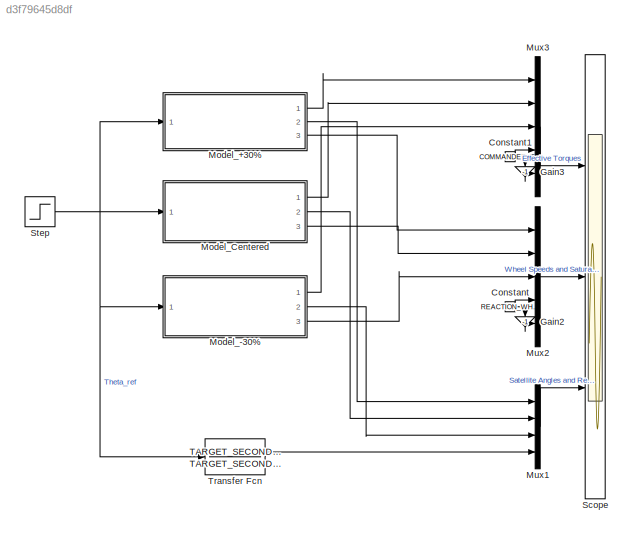
MODEL slx_d3f79645d8df
KIND model
CONFIG AbsTol = auto
CONFIG EnableMultiTasking = off
CONFIG FixedStep = auto
CONFIG MaxStep = auto
CONFIG MinStep = auto
CONFIG RelTol = 1e-3
CONFIG SampleTimeConstraint = Unconstrained
CONFIG SolverName = VariableStepAuto
CONFIG StartTime = 0.0
CONFIG StopTime = 200
BLOCK [Constant] Constant
  Value = REACTION_WHEEL_VELOCITY_SATURATION
BLOCK [Constant] Constant1
  Value = COMMANDED_TORQUE_SATURATION
BLOCK [Gain] Gain2
  Gain = -1
  NameLocation = left
BLOCK [Gain] Gain3
  Gain = -1
  NameLocation = left
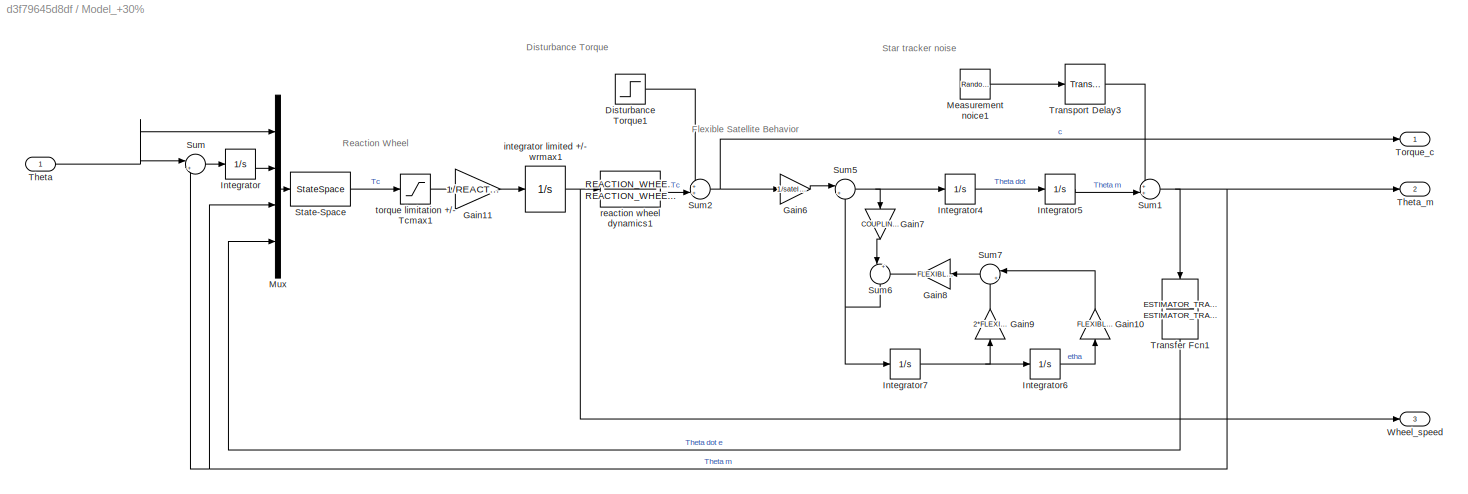
BLOCK [SubSystem] Model_+30%
  Ports = [1, 3]
  RequestExecContextInheritance = off
BLOCK [Step] Model_+30%/Disturbance Torque1
  After = DISTURBANCE_TORQUE
  SampleTime = 0
  Time = DISTURBANCE_TORQUE_DELAY
BLOCK [Gain] Model_+30%/Gain10
  Gain = FLEXIBLE_MODE_FREQUENCY
  NameLocation = right
BLOCK [Gain] Model_+30%/Gain11
  Gain = 1/REACTION_WHEEL_INERTIA
BLOCK [Gain] Model_+30%/Gain6
  Gain = 1/satelliteInertiaMaxWorstCase
BLOCK [Gain] Model_+30%/Gain7
  Gain = COUPLING_COEFFICIENT
  NameLocation = left
BLOCK [Gain] Model_+30%/Gain8
  Gain = FLEXIBLE_MODE_FREQUENCY
  NameLocation = top
BLOCK [Gain] Model_+30%/Gain9
  Gain = 2*FLEXIBLE_MODE_DAMPING_RATIO
  NameLocation = right
BLOCK [Integrator] Model_+30%/Integrator
  Ports = [1, 1]
BLOCK [Integrator] Model_+30%/Integrator4
  Ports = [1, 1]
BLOCK [Integrator] Model_+30%/Integrator5
  Ports = [1, 1]
BLOCK [Integrator] Model_+30%/Integrator6
  InitialCondition = INITIAL_CONDITION_ON_STATE
  Ports = [1, 1]
BLOCK [Integrator] Model_+30%/Integrator7
  Ports = [1, 1]
BLOCK [RandomNumber] Model_+30%/Measurement noice1
  SampleTime = 0.01
  Variance = MEASUREMENT_NOISE_VARIANCE
BLOCK [Mux] Model_+30%/Mux
  DisplayOption = bar
  Ports = [4, 1]
BLOCK [StateSpace] Model_+30%/State-Space
  A = hinfControlWithIntegratorMultimodelStateSpace.A
  B = hinfControlWithIntegratorMultimodelStateSpace.B
  C = hinfControlWithIntegratorMultimodelStateSpace.C
  D = hinfControlWithIntegratorMultimodelStateSpace.D
  InitialCondition = 0
  Ports = [1, 1]
BLOCK [Sum] Model_+30%/Sum
  Inputs = |+-
  Ports = [2, 1]
BLOCK [Sum] Model_+30%/Sum1
  Inputs = ++|
  Ports = [2, 1]
BLOCK [Sum] Model_+30%/Sum2
  Inputs = ++|
  Ports = [2, 1]
BLOCK [Sum] Model_+30%/Sum5
  Inputs = |++
  Ports = [2, 1]
BLOCK [Sum] Model_+30%/Sum6
  Inputs = |+-
  NameLocation = left
  Ports = [2, 1]
BLOCK [Sum] Model_+30%/Sum7
  Inputs = |++
  NameLocation = top
  Ports = [2, 1]
BLOCK [Inport] Model_+30%/Theta
  NameLocation = top
BLOCK [Outport] Model_+30%/Theta_m
  Port = 2
BLOCK [Outport] Model_+30%/Torque_c
BLOCK [TransferFcn] Model_+30%/Transfer Fcn1
  Denominator = ESTIMATOR_TRANSFER_FUNCTION_DENOMINATOR
  NameLocation = left
  Numerator = ESTIMATOR_TRANSFER_FUNCTION_NUMERATOR
BLOCK [TransportDelay] Model_+30%/Transport Delay3
  DelayTime = STAR_TRACKER_NOISE_DELAY
  Ports = [1, 1]
BLOCK [Outport] Model_+30%/Wheel_speed
  Port = 3
BLOCK [Integrator] Model_+30%/integrator limited +//- wrmax1
  LimitOutput = on
  LowerSaturationLimit = -REACTION_WHEEL_VELOCITY_SATURATION
  Ports = [1, 1]
  UpperSaturationLimit = REACTION_WHEEL_VELOCITY_SATURATION
BLOCK [TransferFcn] Model_+30%/reaction wheel dynamics1
  Denominator = REACTION_WHEEL_DYNAMICS_DENOMINATOR
  Numerator = REACTION_WHEEL_DYNAMICS_NUMERATOR
BLOCK [Saturate] Model_+30%/torque limitation +//- Tcmax1
  LowerLimit = -COMMANDED_TORQUE_SATURATION
  UpperLimit = COMMANDED_TORQUE_SATURATION
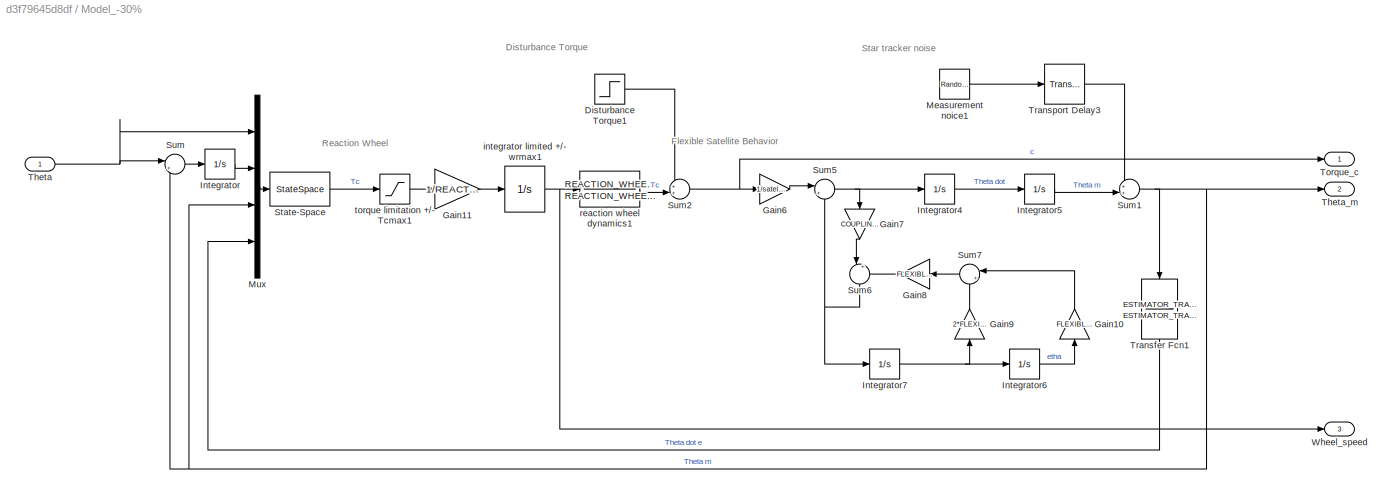
BLOCK [SubSystem] Model_-30%
  Ports = [1, 3]
  RequestExecContextInheritance = off
BLOCK [Step] Model_-30%/Disturbance Torque1
  After = DISTURBANCE_TORQUE
  SampleTime = 0
  Time = DISTURBANCE_TORQUE_DELAY
BLOCK [Gain] Model_-30%/Gain10
  Gain = FLEXIBLE_MODE_FREQUENCY
  NameLocation = right
BLOCK [Gain] Model_-30%/Gain11
  Gain = 1/REACTION_WHEEL_INERTIA
BLOCK [Gain] Model_-30%/Gain6
  Gain = 1/satelliteInertiaMinWorstCase
BLOCK [Gain] Model_-30%/Gain7
  Gain = COUPLING_COEFFICIENT
  NameLocation = left
BLOCK [Gain] Model_-30%/Gain8
  Gain = FLEXIBLE_MODE_FREQUENCY
  NameLocation = top
BLOCK [Gain] Model_-30%/Gain9
  Gain = 2*FLEXIBLE_MODE_DAMPING_RATIO
  NameLocation = right
BLOCK [Integrator] Model_-30%/Integrator
  Ports = [1, 1]
BLOCK [Integrator] Model_-30%/Integrator4
  Ports = [1, 1]
BLOCK [Integrator] Model_-30%/Integrator5
  Ports = [1, 1]
BLOCK [Integrator] Model_-30%/Integrator6
  InitialCondition = INITIAL_CONDITION_ON_STATE
  Ports = [1, 1]
BLOCK [Integrator] Model_-30%/Integrator7
  Ports = [1, 1]
BLOCK [RandomNumber] Model_-30%/Measurement noice1
  SampleTime = 0.01
  Variance = MEASUREMENT_NOISE_VARIANCE
BLOCK [Mux] Model_-30%/Mux
  DisplayOption = bar
  Ports = [4, 1]
BLOCK [StateSpace] Model_-30%/State-Space
  A = hinfControlWithIntegratorMultimodelStateSpace.A
  B = hinfControlWithIntegratorMultimodelStateSpace.B
  C = hinfControlWithIntegratorMultimodelStateSpace.C
  D = hinfControlWithIntegratorMultimodelStateSpace.D
  InitialCondition = 0
  Ports = [1, 1]
BLOCK [Sum] Model_-30%/Sum
  Inputs = |+-
  Ports = [2, 1]
BLOCK [Sum] Model_-30%/Sum1
  Inputs = ++|
  Ports = [2, 1]
BLOCK [Sum] Model_-30%/Sum2
  Inputs = ++|
  Ports = [2, 1]
BLOCK [Sum] Model_-30%/Sum5
  Inputs = |++
  Ports = [2, 1]
BLOCK [Sum] Model_-30%/Sum6
  Inputs = |+-
  NameLocation = left
  Ports = [2, 1]
BLOCK [Sum] Model_-30%/Sum7
  Inputs = |++
  NameLocation = top
  Ports = [2, 1]
BLOCK [Inport] Model_-30%/Theta
BLOCK [Outport] Model_-30%/Theta_m
  Port = 2
BLOCK [Outport] Model_-30%/Torque_c
BLOCK [TransferFcn] Model_-30%/Transfer Fcn1
  Denominator = ESTIMATOR_TRANSFER_FUNCTION_DENOMINATOR
  NameLocation = left
  Numerator = ESTIMATOR_TRANSFER_FUNCTION_NUMERATOR
BLOCK [TransportDelay] Model_-30%/Transport Delay3
  DelayTime = STAR_TRACKER_NOISE_DELAY
  Ports = [1, 1]
BLOCK [Outport] Model_-30%/Wheel_speed
  Port = 3
BLOCK [Integrator] Model_-30%/integrator limited +//- wrmax1
  LimitOutput = on
  LowerSaturationLimit = -REACTION_WHEEL_VELOCITY_SATURATION
  Ports = [1, 1]
  UpperSaturationLimit = REACTION_WHEEL_VELOCITY_SATURATION
BLOCK [TransferFcn] Model_-30%/reaction wheel dynamics1
  Denominator = REACTION_WHEEL_DYNAMICS_DENOMINATOR
  Numerator = REACTION_WHEEL_DYNAMICS_NUMERATOR
BLOCK [Saturate] Model_-30%/torque limitation +//- Tcmax1
  LowerLimit = -COMMANDED_TORQUE_SATURATION
  UpperLimit = COMMANDED_TORQUE_SATURATION
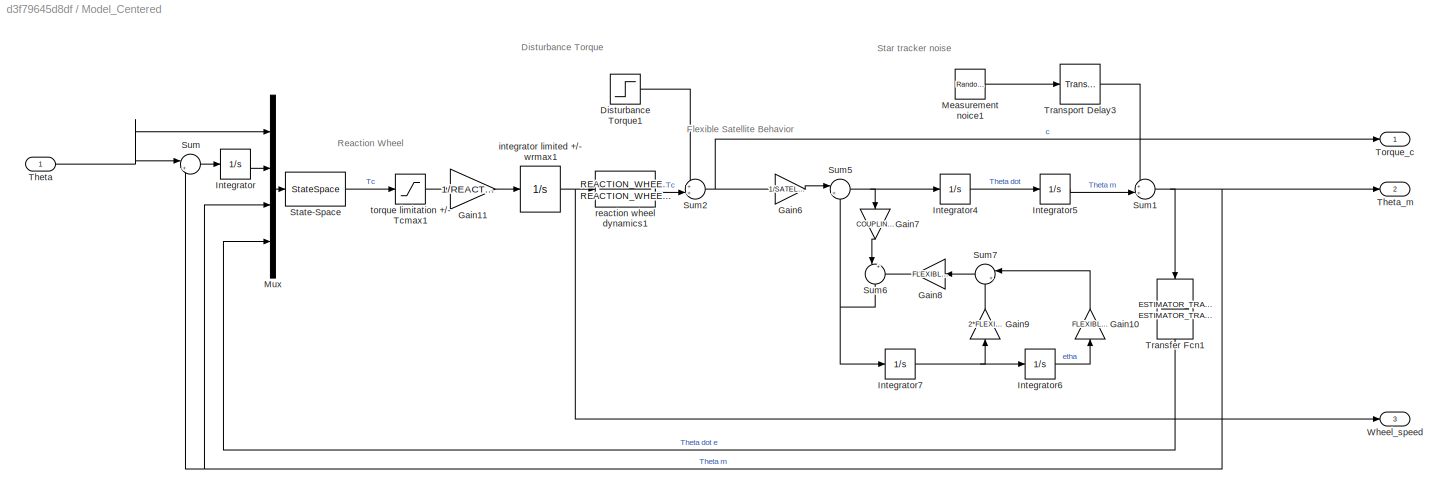
BLOCK [SubSystem] Model_Centered
  Ports = [1, 3]
  RequestExecContextInheritance = off
BLOCK [Step] Model_Centered/Disturbance Torque1
  After = DISTURBANCE_TORQUE
  SampleTime = 0
  Time = DISTURBANCE_TORQUE_DELAY
BLOCK [Gain] Model_Centered/Gain10
  Gain = FLEXIBLE_MODE_FREQUENCY
  NameLocation = right
BLOCK [Gain] Model_Centered/Gain11
  Gain = 1/REACTION_WHEEL_INERTIA
BLOCK [Gain] Model_Centered/Gain6
  Gain = 1/SATELLITE_INERTIA
BLOCK [Gain] Model_Centered/Gain7
  Gain = COUPLING_COEFFICIENT
  NameLocation = left
BLOCK [Gain] Model_Centered/Gain8
  Gain = FLEXIBLE_MODE_FREQUENCY
  NameLocation = top
BLOCK [Gain] Model_Centered/Gain9
  Gain = 2*FLEXIBLE_MODE_DAMPING_RATIO
  NameLocation = right
BLOCK [Integrator] Model_Centered/Integrator
  Ports = [1, 1]
BLOCK [Integrator] Model_Centered/Integrator4
  Ports = [1, 1]
BLOCK [Integrator] Model_Centered/Integrator5
  Ports = [1, 1]
BLOCK [Integrator] Model_Centered/Integrator6
  InitialCondition = INITIAL_CONDITION_ON_STATE
  Ports = [1, 1]
BLOCK [Integrator] Model_Centered/Integrator7
  Ports = [1, 1]
BLOCK [RandomNumber] Model_Centered/Measurement noice1
  SampleTime = 0.01
  Variance = MEASUREMENT_NOISE_VARIANCE
BLOCK [Mux] Model_Centered/Mux
  DisplayOption = bar
  Ports = [4, 1]
BLOCK [StateSpace] Model_Centered/State-Space
  A = hinfControlWithIntegratorMultimodelStateSpace.A
  B = hinfControlWithIntegratorMultimodelStateSpace.B
  C = hinfControlWithIntegratorMultimodelStateSpace.C
  D = hinfControlWithIntegratorMultimodelStateSpace.D
  InitialCondition = 0
  Ports = [1, 1]
BLOCK [Sum] Model_Centered/Sum
  Inputs = |+-
  Ports = [2, 1]
BLOCK [Sum] Model_Centered/Sum1
  Inputs = ++|
  Ports = [2, 1]
BLOCK [Sum] Model_Centered/Sum2
  Inputs = ++|
  Ports = [2, 1]
BLOCK [Sum] Model_Centered/Sum5
  Inputs = |++
  Ports = [2, 1]
BLOCK [Sum] Model_Centered/Sum6
  Inputs = |+-
  NameLocation = left
  Ports = [2, 1]
BLOCK [Sum] Model_Centered/Sum7
  Inputs = |++
  NameLocation = top
  Ports = [2, 1]
BLOCK [Inport] Model_Centered/Theta
  NameLocation = top
BLOCK [Outport] Model_Centered/Theta_m
  Port = 2
BLOCK [Outport] Model_Centered/Torque_c
BLOCK [TransferFcn] Model_Centered/Transfer Fcn1
  Denominator = ESTIMATOR_TRANSFER_FUNCTION_DENOMINATOR
  NameLocation = left
  Numerator = ESTIMATOR_TRANSFER_FUNCTION_NUMERATOR
BLOCK [TransportDelay] Model_Centered/Transport Delay3
  DelayTime = STAR_TRACKER_NOISE_DELAY
  Ports = [1, 1]
BLOCK [Outport] Model_Centered/Wheel_speed
  Port = 3
BLOCK [Integrator] Model_Centered/integrator limited +//- wrmax1
  LimitOutput = on
  LowerSaturationLimit = -REACTION_WHEEL_VELOCITY_SATURATION
  Ports = [1, 1]
  UpperSaturationLimit = REACTION_WHEEL_VELOCITY_SATURATION
BLOCK [TransferFcn] Model_Centered/reaction wheel dynamics1
  Denominator = REACTION_WHEEL_DYNAMICS_DENOMINATOR
  Numerator = REACTION_WHEEL_DYNAMICS_NUMERATOR
BLOCK [Saturate] Model_Centered/torque limitation +//- Tcmax1
  LowerLimit = -COMMANDED_TORQUE_SATURATION
  UpperLimit = COMMANDED_TORQUE_SATURATION
BLOCK [Mux] Mux1
  DisplayOption = bar
  Ports = [4, 1]
BLOCK [Mux] Mux2
  DisplayOption = bar
  Inputs = 5
  Ports = [5, 1]
BLOCK [Mux] Mux3
  DisplayOption = bar
  Inputs = 5
  Ports = [5, 1]
BLOCK [Scope] Scope
  Floating = off
  NumInputPorts = 3
  Ports = [3]
  ScopeSpecificationString = Simulink.scopes.TimeScopeBlockCfg('CurrentConfiguration', extmgr.ConfigurationSet(extmgr.Configuration('Core','General UI',true),extmgr.Configuration('Core','Source UI',true),extmgr.Configuration('Sources','WiredSimulink',true),extmgr.Configuration('Visuals','Time Domain',true,'SerializedDisplays',{struct('MinYLimReal','-0.0625','MaxYLimReal','0.0625','YLabelReal','','MinYLimMag','0.00000','MaxYLi...<+3188ch>
BLOCK [Step] Step
  After = MAXIMUM_TOLERABLE_POINTING_ERROR
  SampleTime = 0
  Time = 0
BLOCK [TransferFcn] Transfer Fcn
  Denominator = TARGET_SECOND_ORDER.TRANSFER_FUNCTION.Denominator{1}
  Numerator = TARGET_SECOND_ORDER.TRANSFER_FUNCTION.Numerator{1}
ANNOTATION Model_+30%: Disturbance Torque
ANNOTATION Model_+30%: Flexible Satellite Behavior
ANNOTATION Model_+30%: Reaction Wheel
ANNOTATION Model_+30%: Star tracker noise
ANNOTATION Model_-30%: Disturbance Torque
ANNOTATION Model_-30%: Flexible Satellite Behavior
ANNOTATION Model_-30%: Reaction Wheel
ANNOTATION Model_-30%: Star tracker noise
ANNOTATION Model_Centered: Disturbance Torque
ANNOTATION Model_Centered: Flexible Satellite Behavior
ANNOTATION Model_Centered: Reaction Wheel
ANNOTATION Model_Centered: Star tracker noise
NET Constant1:1 -> Gain3:1, Mux3:4
NET Constant:1 -> Gain2:1, Mux2:4
LINE Gain2:1 -> Mux2:5
LINE Gain3:1 -> Mux3:5
LINE Model_+30%/Disturbance Torque1:1 -> Model_+30%/Sum2:1
LINE Model_+30%/Gain10:1 -> Model_+30%/Sum7:1
LINE Model_+30%/Gain11:1 -> Model_+30%/integrator limited +//- wrmax1:1
LINE Model_+30%/Gain6:1 -> Model_+30%/Sum5:1
LINE Model_+30%/Gain7:1 -> Model_+30%/Sum6:1
LINE Model_+30%/Gain8:1 -> Model_+30%/Sum6:2
LINE Model_+30%/Gain9:1 -> Model_+30%/Sum7:2
LINE Model_+30%/Integrator4:1 -> Model_+30%/Integrator5:1
LINE Model_+30%/Integrator5:1 -> Model_+30%/Sum1:2
LINE Model_+30%/Integrator6:1 -> Model_+30%/Gain10:1
NET Model_+30%/Integrator7:1 -> Model_+30%/Gain9:1, Model_+30%/Integrator6:1
LINE Model_+30%/Integrator:1 -> Model_+30%/Mux:2
LINE Model_+30%/Measurement noice1:1 -> Model_+30%/Transport Delay3:1
LINE Model_+30%/Mux:1 -> Model_+30%/State-Space:1
LINE Model_+30%/State-Space:1 -> Model_+30%/torque limitation +//- Tcmax1:1
NET Model_+30%/Sum1:1 -> Model_+30%/Mux:3, Model_+30%/Sum:2, Model_+30%/Theta_m:1, Model_+30%/Transfer Fcn1:1
NET Model_+30%/Sum2:1 -> Model_+30%/Gain6:1, Model_+30%/Torque_c:1
NET Model_+30%/Sum5:1 -> Model_+30%/Gain7:1, Model_+30%/Integrator4:1
NET Model_+30%/Sum6:1 -> Model_+30%/Integrator7:1, Model_+30%/Sum5:2
LINE Model_+30%/Sum7:1 -> Model_+30%/Gain8:1
LINE Model_+30%/Sum:1 -> Model_+30%/Integrator:1
NET Model_+30%/Theta:1 -> Model_+30%/Mux:1, Model_+30%/Sum:1
LINE Model_+30%/Transfer Fcn1:1 -> Model_+30%/Mux:4
LINE Model_+30%/Transport Delay3:1 -> Model_+30%/Sum1:1
NET Model_+30%/integrator limited +//- wrmax1:1 -> Model_+30%/Wheel_speed:1, Model_+30%/reaction wheel dynamics1:1
LINE Model_+30%/reaction wheel dynamics1:1 -> Model_+30%/Sum2:2
LINE Model_+30%/torque limitation +//- Tcmax1:1 -> Model_+30%/Gain11:1
LINE Model_+30%:1 -> Mux3:1
LINE Model_+30%:2 -> Mux1:1
LINE Model_+30%:3 -> Mux2:1
LINE Model_-30%/Disturbance Torque1:1 -> Model_-30%/Sum2:1
LINE Model_-30%/Gain10:1 -> Model_-30%/Sum7:1
LINE Model_-30%/Gain11:1 -> Model_-30%/integrator limited +//- wrmax1:1
LINE Model_-30%/Gain6:1 -> Model_-30%/Sum5:1
LINE Model_-30%/Gain7:1 -> Model_-30%/Sum6:1
LINE Model_-30%/Gain8:1 -> Model_-30%/Sum6:2
LINE Model_-30%/Gain9:1 -> Model_-30%/Sum7:2
LINE Model_-30%/Integrator4:1 -> Model_-30%/Integrator5:1
LINE Model_-30%/Integrator5:1 -> Model_-30%/Sum1:2
LINE Model_-30%/Integrator6:1 -> Model_-30%/Gain10:1
NET Model_-30%/Integrator7:1 -> Model_-30%/Gain9:1, Model_-30%/Integrator6:1
LINE Model_-30%/Integrator:1 -> Model_-30%/Mux:2
LINE Model_-30%/Measurement noice1:1 -> Model_-30%/Transport Delay3:1
LINE Model_-30%/Mux:1 -> Model_-30%/State-Space:1
LINE Model_-30%/State-Space:1 -> Model_-30%/torque limitation +//- Tcmax1:1
NET Model_-30%/Sum1:1 -> Model_-30%/Mux:3, Model_-30%/Sum:2, Model_-30%/Theta_m:1, Model_-30%/Transfer Fcn1:1
NET Model_-30%/Sum2:1 -> Model_-30%/Gain6:1, Model_-30%/Torque_c:1
NET Model_-30%/Sum5:1 -> Model_-30%/Gain7:1, Model_-30%/Integrator4:1
NET Model_-30%/Sum6:1 -> Model_-30%/Integrator7:1, Model_-30%/Sum5:2
LINE Model_-30%/Sum7:1 -> Model_-30%/Gain8:1
LINE Model_-30%/Sum:1 -> Model_-30%/Integrator:1
NET Model_-30%/Theta:1 -> Model_-30%/Mux:1, Model_-30%/Sum:1
LINE Model_-30%/Transfer Fcn1:1 -> Model_-30%/Mux:4
LINE Model_-30%/Transport Delay3:1 -> Model_-30%/Sum1:1
NET Model_-30%/integrator limited +//- wrmax1:1 -> Model_-30%/Wheel_speed:1, Model_-30%/reaction wheel dynamics1:1
LINE Model_-30%/reaction wheel dynamics1:1 -> Model_-30%/Sum2:2
LINE Model_-30%/torque limitation +//- Tcmax1:1 -> Model_-30%/Gain11:1
LINE Model_-30%:1 -> Mux3:3
LINE Model_-30%:2 -> Mux1:3
LINE Model_-30%:3 -> Mux2:3
LINE Model_Centered/Disturbance Torque1:1 -> Model_Centered/Sum2:1
LINE Model_Centered/Gain10:1 -> Model_Centered/Sum7:1
LINE Model_Centered/Gain11:1 -> Model_Centered/integrator limited +//- wrmax1:1
LINE Model_Centered/Gain6:1 -> Model_Centered/Sum5:1
LINE Model_Centered/Gain7:1 -> Model_Centered/Sum6:1
LINE Model_Centered/Gain8:1 -> Model_Centered/Sum6:2
LINE Model_Centered/Gain9:1 -> Model_Centered/Sum7:2
LINE Model_Centered/Integrator4:1 -> Model_Centered/Integrator5:1
LINE Model_Centered/Integrator5:1 -> Model_Centered/Sum1:2
LINE Model_Centered/Integrator6:1 -> Model_Centered/Gain10:1
NET Model_Centered/Integrator7:1 -> Model_Centered/Gain9:1, Model_Centered/Integrator6:1
LINE Model_Centered/Integrator:1 -> Model_Centered/Mux:2
LINE Model_Centered/Measurement noice1:1 -> Model_Centered/Transport Delay3:1
LINE Model_Centered/Mux:1 -> Model_Centered/State-Space:1
LINE Model_Centered/State-Space:1 -> Model_Centered/torque limitation +//- Tcmax1:1
NET Model_Centered/Sum1:1 -> Model_Centered/Mux:3, Model_Centered/Sum:2, Model_Centered/Theta_m:1, Model_Centered/Transfer Fcn1:1
NET Model_Centered/Sum2:1 -> Model_Centered/Gain6:1, Model_Centered/Torque_c:1
NET Model_Centered/Sum5:1 -> Model_Centered/Gain7:1, Model_Centered/Integrator4:1
NET Model_Centered/Sum6:1 -> Model_Centered/Integrator7:1, Model_Centered/Sum5:2
LINE Model_Centered/Sum7:1 -> Model_Centered/Gain8:1
LINE Model_Centered/Sum:1 -> Model_Centered/Integrator:1
NET Model_Centered/Theta:1 -> Model_Centered/Mux:1, Model_Centered/Sum:1
LINE Model_Centered/Transfer Fcn1:1 -> Model_Centered/Mux:4
LINE Model_Centered/Transport Delay3:1 -> Model_Centered/Sum1:1
NET Model_Centered/integrator limited +//- wrmax1:1 -> Model_Centered/Wheel_speed:1, Model_Centered/reaction wheel dynamics1:1
LINE Model_Centered/reaction wheel dynamics1:1 -> Model_Centered/Sum2:2
LINE Model_Centered/torque limitation +//- Tcmax1:1 -> Model_Centered/Gain11:1
LINE Model_Centered:1 -> Mux3:2
LINE Model_Centered:2 -> Mux1:2
LINE Model_Centered:3 -> Mux2:2
LINE Mux1:1 -> Scope:3
LINE Mux2:1 -> Scope:2
LINE Mux3:1 -> Scope:1
NET Step:1 -> Model_+30%:1, Model_-30%:1, Model_Centered:1, Transfer Fcn:1
LINE Transfer Fcn:1 -> Mux1:4
note: NET lines group one-source signal fan-out (src -> all destinations, sorted); 1:1 wires keep LINE
